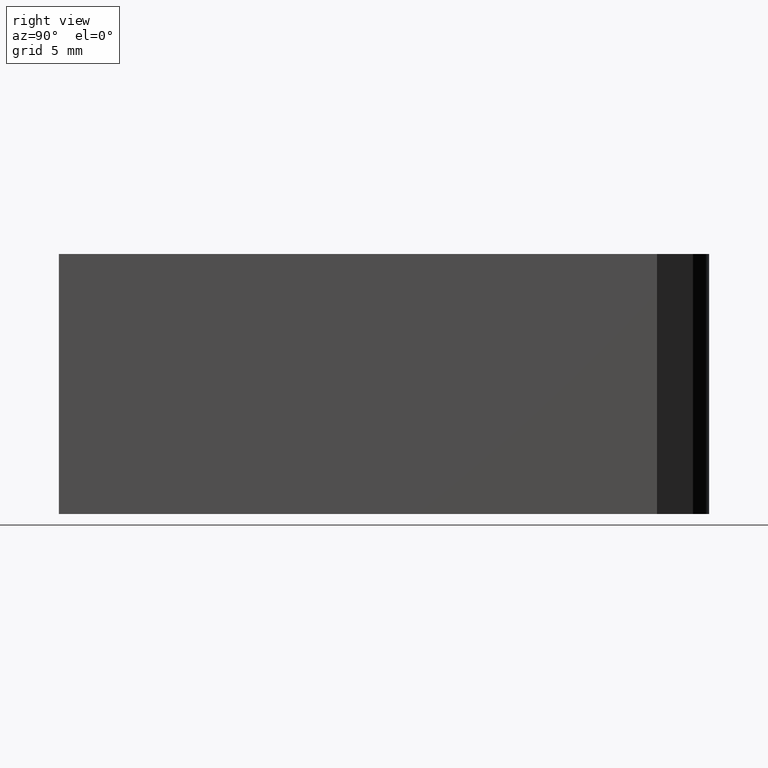
[diagram: clean part render]
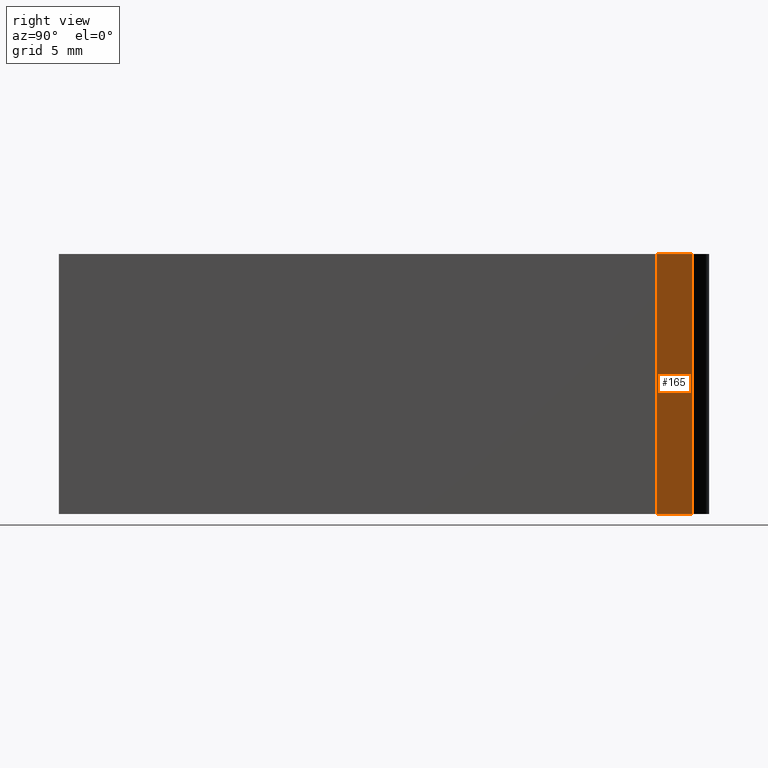
[diagram: same view with one face highlighted and labeled with its STEP entity id]
A machine part, right view. The second image highlights one B-rep face of the part: STEP entity #165.
In plain terms, the highlighted planar face has unit normal (0.866, 0.5, 0).
Its self-contained STEP definition (entity closure, byte-faithful):
#22=FACE_OUTER_BOUND('',#31,.T.);
#31=EDGE_LOOP('',(#133,#134,#135,#136));
#41=LINE('',#260,#60);
#50=LINE('',#279,#69);
#51=LINE('',#282,#70);
#52=LINE('',#283,#71);
#60=VECTOR('',#213,10.);
#69=VECTOR('',#232,10.);
#70=VECTOR('',#235,10.);
#71=VECTOR('',#236,10.);
#80=VERTEX_POINT('',#257);
#81=VERTEX_POINT('',#259);
#86=VERTEX_POINT('',#277);
#87=VERTEX_POINT('',#281);
#94=EDGE_CURVE('',#81,#80,#41,.T.);
#104=EDGE_CURVE('',#86,#80,#50,.T.);
#105=EDGE_CURVE('',#86,#87,#51,.T.);
#106=EDGE_CURVE('',#87,#81,#52,.T.);
#133=ORIENTED_EDGE('',*,*,#105,.T.);
#134=ORIENTED_EDGE('',*,*,#106,.T.);
#135=ORIENTED_EDGE('',*,*,#94,.T.);
#136=ORIENTED_EDGE('',*,*,#104,.F.);
#156=PLANE('',#199);
#165=ADVANCED_FACE('',(#22),#156,.T.);
#199=AXIS2_PLACEMENT_3D('',#280,#233,#234);
#213=DIRECTION('',(-0.499999999999999,0.866025403784439,0.));
#232=DIRECTION('',(0.,0.,-1.));
#233=DIRECTION('center_axis',(0.866025403784439,0.499999999999999,0.));
#234=DIRECTION('ref_axis',(0.,0.,-1.));
#235=DIRECTION('',(0.499999999999999,-0.866025403784439,0.));
#236=DIRECTION('',(0.,0.,-1.));
#257=CARTESIAN_POINT('',(5.22867029268835,25.3400590049251,-8.));
#259=CARTESIAN_POINT('',(6.5,23.1380513586897,-8.));
#260=CARTESIAN_POINT('',(5.22867029268835,25.3400590049251,-8.));
#277=CARTESIAN_POINT('',(5.22867029268835,25.3400590049251,8.));
#279=CARTESIAN_POINT('',(5.22867029268835,25.3400590049251,0.));
#280=CARTESIAN_POINT('Origin',(5.22867029268835,25.3400590049251,0.));
#281=CARTESIAN_POINT('',(6.5,23.1380513586897,8.));
#282=CARTESIAN_POINT('',(5.22867029268835,25.3400590049251,8.));
#283=CARTESIAN_POINT('',(6.5,23.1380513586897,0.));